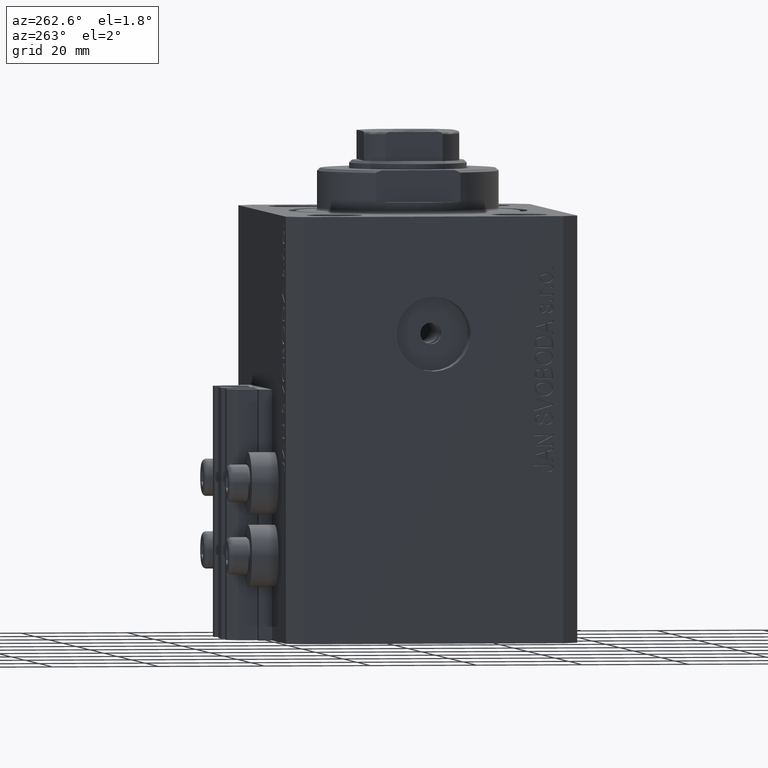
[diagram: clean part render]
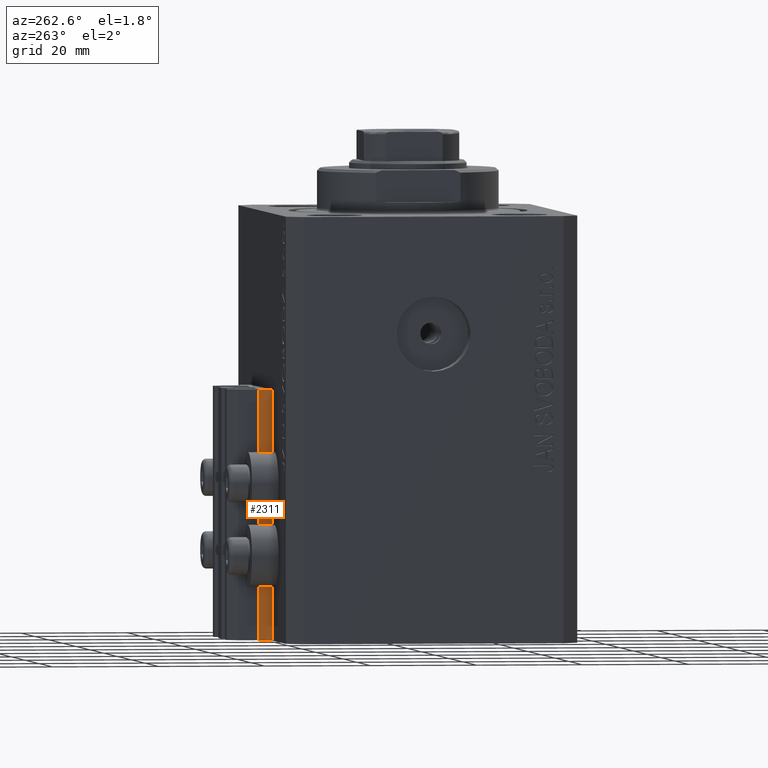
[diagram: same view with one face highlighted and labeled with its STEP entity id]
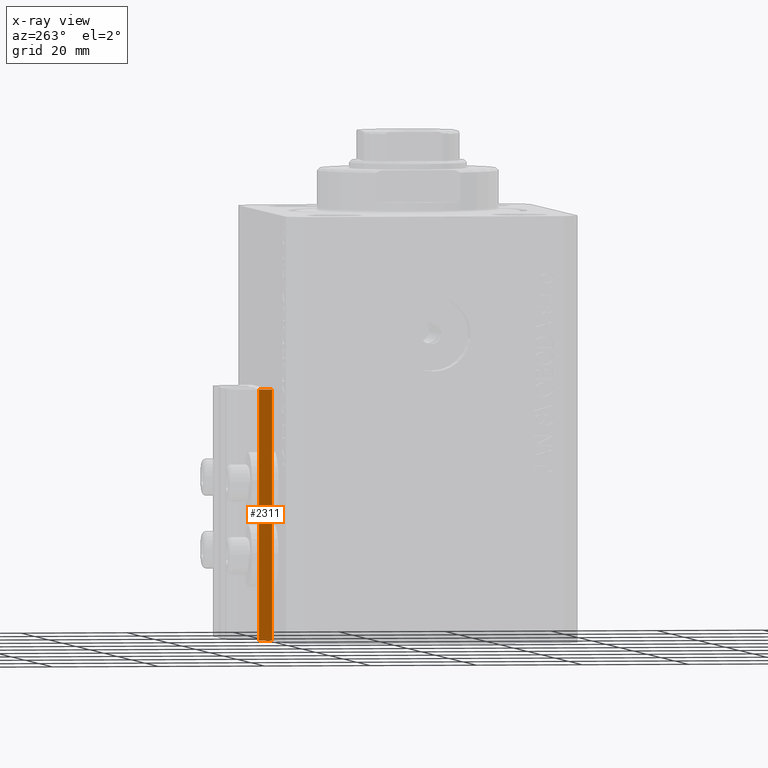
[diagram: x-ray of the same camera — body ghosted, the highlighted face saturated]
A machine part, auxiliary view. The second image highlights one B-rep face of the part: STEP entity #2311.
The next image is the same camera in x-ray: the body ghosted, the highlighted face saturated — about 0% of this face is hidden behind the body in this view.
In plain terms, the highlighted planar face has unit normal (-1, 0, 0).
Its self-contained STEP definition (entity closure, byte-faithful):
#1585 = CARTESIAN_POINT ( 'NONE',  ( -14.50000000000000000, 29.99999999999999289, -80.00000000000000000 ) ) ;
#2311 = ADVANCED_FACE ( 'NONE', ( #22708 ), #15501, .T. ) ;
#2880 = CARTESIAN_POINT ( 'NONE',  ( -14.50000000000000000, 29.99999999999999289, -33.00000000000000000 ) ) ;
#3795 = EDGE_CURVE ( 'NONE', #19861, #30492, #35772, .T. ) ;
#7025 = AXIS2_PLACEMENT_3D ( 'NONE', #1585, #34463, #41674 ) ;
#8562 = VECTOR ( 'NONE', #30400, 1000.000000000000000 ) ;
#11108 = VECTOR ( 'NONE', #17507, 1000.000000000000000 ) ;
#11682 = LINE ( 'NONE', #26559, #8562 ) ;
#13591 = VERTEX_POINT ( 'NONE', #16080 ) ;
#14664 = CARTESIAN_POINT ( 'NONE',  ( -14.50000000000000000, 27.50000000000000355, -33.00000000000000000 ) ) ;
#15137 = DIRECTION ( 'NONE',  ( 0.000000000000000000, -1.000000000000000000, 0.000000000000000000 ) ) ;
#15501 = PLANE ( 'NONE',  #7025 ) ;
#15993 = VERTEX_POINT ( 'NONE', #44045 ) ;
#16080 = CARTESIAN_POINT ( 'NONE',  ( -14.50000000000000000, 27.50000000000000355, -80.00000000000000000 ) ) ;
#17507 = DIRECTION ( 'NONE',  ( 0.000000000000000000, -1.000000000000000000, 0.000000000000000000 ) ) ;
#19222 = LINE ( 'NONE', #33394, #23897 ) ;
#19861 = VERTEX_POINT ( 'NONE', #39362 ) ;
#21362 = ORIENTED_EDGE ( 'NONE', *, *, #31179, .T. ) ;
#22237 = EDGE_LOOP ( 'NONE', ( #42022, #32432, #29229, #21362 ) ) ;
#22708 = FACE_OUTER_BOUND ( 'NONE', #22237, .T. ) ;
#23897 = VECTOR ( 'NONE', #15137, 1000.000000000000000 ) ;
#25192 = CARTESIAN_POINT ( 'NONE',  ( -14.50000000000000000, 29.99999999999999289, -80.00000000000000000 ) ) ;
#25671 = LINE ( 'NONE', #25192, #43049 ) ;
#26559 = CARTESIAN_POINT ( 'NONE',  ( -14.50000000000000000, 27.50000000000000355, -80.00000000000000000 ) ) ;
#29229 = ORIENTED_EDGE ( 'NONE', *, *, #30644, .T. ) ;
#29512 = DIRECTION ( 'NONE',  ( 0.000000000000000000, 0.000000000000000000, 1.000000000000000000 ) ) ;
#30400 = DIRECTION ( 'NONE',  ( 0.000000000000000000, 0.000000000000000000, 1.000000000000000000 ) ) ;
#30492 = VERTEX_POINT ( 'NONE', #14664 ) ;
#30644 = EDGE_CURVE ( 'NONE', #15993, #13591, #19222, .T. ) ;
#31179 = EDGE_CURVE ( 'NONE', #13591, #30492, #11682, .T. ) ;
#32432 = ORIENTED_EDGE ( 'NONE', *, *, #42348, .F. ) ;
#33394 = CARTESIAN_POINT ( 'NONE',  ( -14.50000000000000000, 29.99999999999999289, -80.00000000000000000 ) ) ;
#34463 = DIRECTION ( 'NONE',  ( -1.000000000000000000, 0.000000000000000000, 0.000000000000000000 ) ) ;
#35772 = LINE ( 'NONE', #2880, #11108 ) ;
#39362 = CARTESIAN_POINT ( 'NONE',  ( -14.50000000000000000, 29.99999999999999289, -33.00000000000000000 ) ) ;
#41674 = DIRECTION ( 'NONE',  ( 0.000000000000000000, 0.000000000000000000, 1.000000000000000000 ) ) ;
#42022 = ORIENTED_EDGE ( 'NONE', *, *, #3795, .F. ) ;
#42348 = EDGE_CURVE ( 'NONE', #15993, #19861, #25671, .T. ) ;
#43049 = VECTOR ( 'NONE', #29512, 1000.000000000000000 ) ;
#44045 = CARTESIAN_POINT ( 'NONE',  ( -14.50000000000000000, 29.99999999999999289, -80.00000000000000000 ) ) ;